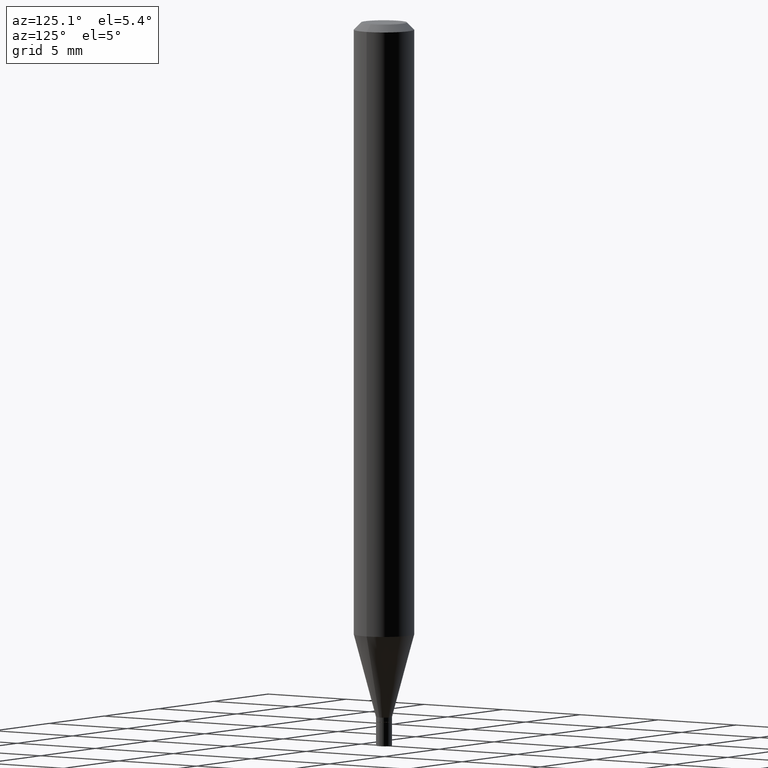
[diagram: clean part render]
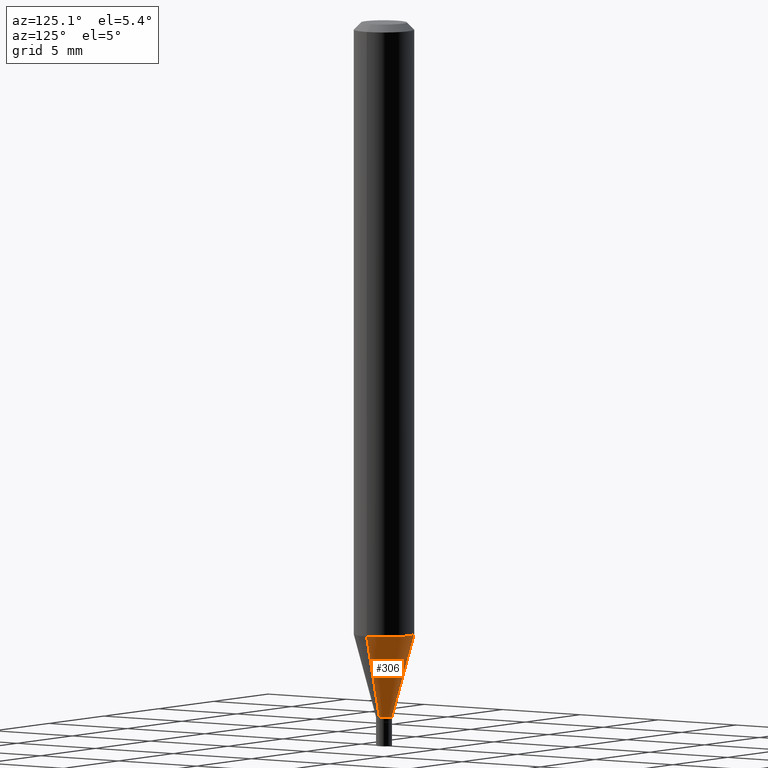
[diagram: same view with one face highlighted and labeled with its STEP entity id]
A machine part, auxiliary view. The second image highlights one B-rep face of the part: STEP entity #306.
In plain terms, the highlighted conical surface has half-angle 15 deg.
Its self-contained STEP definition (entity closure, byte-faithful):
#4 = VERTEX_POINT ( 'NONE', #49 ) ;
#8 = VERTEX_POINT ( 'NONE', #291 ) ;
#49 = CARTESIAN_POINT ( 'NONE',  ( -0.06250000000000001388, -3.985991914242392542E-15, -1.268825662851831737 ) ) ;
#61 = LINE ( 'NONE', #407, #193 ) ;
#66 = LINE ( 'NONE', #330, #216 ) ;
#69 = FACE_OUTER_BOUND ( 'NONE', #411, .T. ) ;
#79 = DIRECTION ( 'NONE',  ( -2.445468806185136597E-29, 3.491481338843145583E-15, 1.000000000000000000 ) ) ;
#82 = DIRECTION ( 'NONE',  ( 1.000000000000000000, -6.982962677686276177E-15, 0.000000000000000000 ) ) ;
#112 = CARTESIAN_POINT ( 'NONE',  ( 3.522697815309689546E-29, -5.029478868603552152E-15, -1.440500000000000114 ) ) ;
#129 = DIRECTION ( 'NONE',  ( 0.2588190451025211281, 1.565188264969623940E-15, 0.9659258262890682012 ) ) ;
#159 = AXIS2_PLACEMENT_3D ( 'NONE', #112, #79, #82 ) ;
#163 = EDGE_CURVE ( 'NONE', #466, #301, #61, .T. ) ;
#174 = DIRECTION ( 'NONE',  ( 1.000000000000000000, -6.982962677686276177E-15, 0.000000000000000000 ) ) ;
#178 = CONICAL_SURFACE ( 'NONE', #279, 0.01649999999999992445, 0.2617993877991497964 ) ;
#179 = EDGE_CURVE ( 'NONE', #8, #4, #66, .T. ) ;
#193 = VECTOR ( 'NONE', #129, 39.37007874015748143 ) ;
#204 = CARTESIAN_POINT ( 'NONE',  ( 3.522697815309689546E-29, -5.029478868603552152E-15, -1.440500000000000114 ) ) ;
#216 = VECTOR ( 'NONE', #305, 39.37007874015748143 ) ;
#241 = CARTESIAN_POINT ( 'NONE',  ( 0.06250000000000001388, -4.866516291447847616E-15, -1.268825662851831737 ) ) ;
#248 = AXIS2_PLACEMENT_3D ( 'NONE', #362, #293, #438 ) ;
#260 = ORIENTED_EDGE ( 'NONE', *, *, #371, .T. ) ;
#274 = ORIENTED_EDGE ( 'NONE', *, *, #163, .F. ) ;
#279 = AXIS2_PLACEMENT_3D ( 'NONE', #204, #349, #174 ) ;
#291 = CARTESIAN_POINT ( 'NONE',  ( -0.01649999999999992445, -4.449115615722764621E-15, -1.440500000000000114 ) ) ;
#293 = DIRECTION ( 'NONE',  ( -2.445468806185136597E-29, 3.491481338843145583E-15, 1.000000000000000000 ) ) ;
#301 = VERTEX_POINT ( 'NONE', #241 ) ;
#305 = DIRECTION ( 'NONE',  ( -0.2588190451025211281, 5.211531920934548675E-15, 0.9659258262890682012 ) ) ;
#306 = ADVANCED_FACE ( 'NONE', ( #69 ), #178, .T. ) ;
#309 = ORIENTED_EDGE ( 'NONE', *, *, #179, .T. ) ;
#326 = ORIENTED_EDGE ( 'NONE', *, *, #393, .F. ) ;
#330 = CARTESIAN_POINT ( 'NONE',  ( -0.01649999999999992445, -4.912239317203135912E-15, -1.440500000000000114 ) ) ;
#349 = DIRECTION ( 'NONE',  ( -2.445468806185136597E-29, 3.491481338843145583E-15, 1.000000000000000000 ) ) ;
#362 = CARTESIAN_POINT ( 'NONE',  ( 3.102873578991333578E-29, -4.430081124092455158E-15, -1.268825662851831737 ) ) ;
#371 = EDGE_CURVE ( 'NONE', #466, #8, #428, .T. ) ;
#393 = EDGE_CURVE ( 'NONE', #301, #4, #431, .T. ) ;
#406 = CARTESIAN_POINT ( 'NONE',  ( 0.01649999999999992445, -5.144697752785374543E-15, -1.440500000000000114 ) ) ;
#407 = CARTESIAN_POINT ( 'NONE',  ( 0.01649999999999992445, -5.144697752785374543E-15, -1.440500000000000114 ) ) ;
#411 = EDGE_LOOP ( 'NONE', ( #260, #309, #326, #274 ) ) ;
#428 = CIRCLE ( 'NONE', #159, 0.01649999999999992445 ) ;
#431 = CIRCLE ( 'NONE', #248, 0.06250000000000000000 ) ;
#438 = DIRECTION ( 'NONE',  ( 1.000000000000000000, -6.982962677686262766E-15, 0.000000000000000000 ) ) ;
#466 = VERTEX_POINT ( 'NONE', #406 ) ;